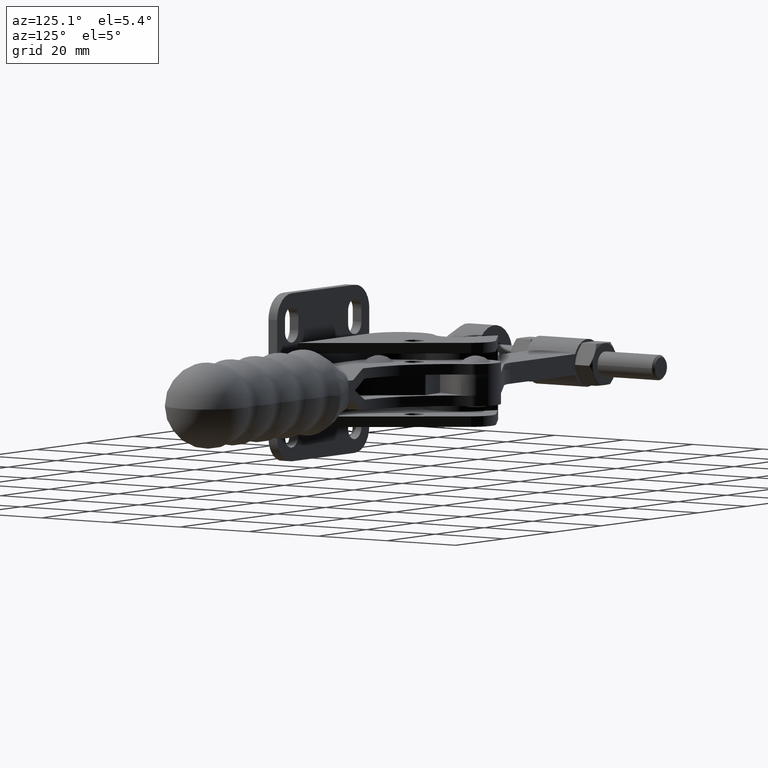
[diagram: clean part render]
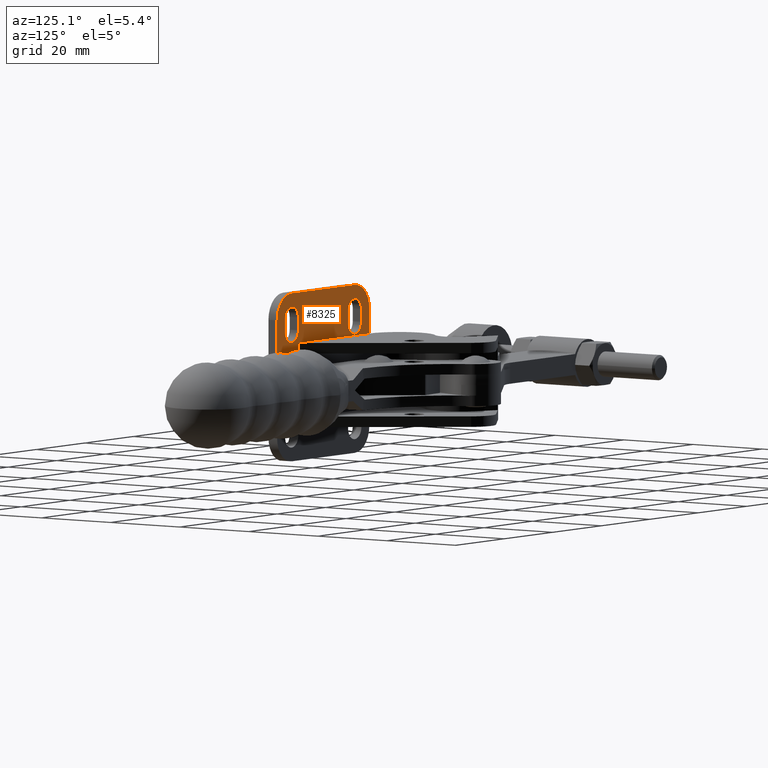
[diagram: same view with one face highlighted and labeled with its STEP entity id]
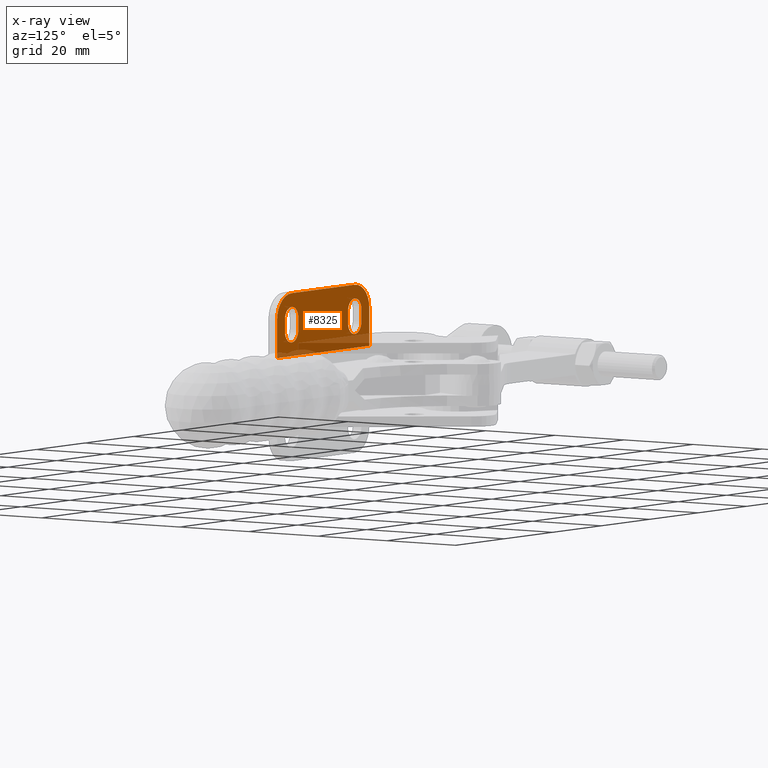
[diagram: x-ray of the same camera — body ghosted, the highlighted face saturated]
A machine part, auxiliary view. The second image highlights one B-rep face of the part: STEP entity #8325.
The next image is the same camera in x-ray: the body ghosted, the highlighted face saturated — about 20% of this face is hidden behind the body in this view.
In plain terms, the highlighted planar face has unit normal (0, -1, 0).
Its self-contained STEP definition (entity closure, byte-faithful):
#31 = AXIS2_PLACEMENT_3D ( 'NONE', #8297, #2074, #9308 ) ;
#71 = CARTESIAN_POINT ( 'NONE',  ( 31.99999999999997200, 2.500000000000002200, 13.99999999999995600 ) ) ;
#99 = EDGE_CURVE ( 'NONE', #518, #8518, #2357, .T. ) ;
#142 = EDGE_CURVE ( 'NONE', #5850, #9049, #3531, .T. ) ;
#286 = DIRECTION ( 'NONE',  ( -1.000000000000000000, -0.0000000000000000000, -0.0000000000000000000 ) ) ;
#350 = DIRECTION ( 'NONE',  ( 0.0000000000000000000, 0.0000000000000000000, -1.000000000000000000 ) ) ;
#362 = ORIENTED_EDGE ( 'NONE', *, *, #2349, .T. ) ;
#377 = EDGE_CURVE ( 'NONE', #10472, #9955, #9428, .T. ) ;
#516 = CARTESIAN_POINT ( 'NONE',  ( 31.99999999999991800, 2.500000000000002200, 10.99999999999998000 ) ) ;
#518 = VERTEX_POINT ( 'NONE', #697 ) ;
#696 = ORIENTED_EDGE ( 'NONE', *, *, #3970, .T. ) ;
#697 = CARTESIAN_POINT ( 'NONE',  ( 3.249999999999975100, 2.500000000000002200, 13.99999999999995600 ) ) ;
#700 = AXIS2_PLACEMENT_3D ( 'NONE', #9621, #4707, #10433 ) ;
#746 = LINE ( 'NONE', #3680, #7254 ) ;
#869 = CARTESIAN_POINT ( 'NONE',  ( 8.749999999999980500, 2.500000000000002200, 10.99999999999995200 ) ) ;
#905 = PLANE ( 'NONE',  #8285 ) ;
#1148 = ORIENTED_EDGE ( 'NONE', *, *, #142, .F. ) ;
#1368 = ORIENTED_EDGE ( 'NONE', *, *, #3144, .F. ) ;
#1383 = ORIENTED_EDGE ( 'NONE', *, *, #4929, .T. ) ;
#1417 = LINE ( 'NONE', #7711, #3445 ) ;
#1425 = VERTEX_POINT ( 'NONE', #10109 ) ;
#1567 = CARTESIAN_POINT ( 'NONE',  ( 29.25000000000000000, 2.500000000000002200, 13.99999999999995600 ) ) ;
#1632 = VECTOR ( 'NONE', #7252, 1000.000000000000000 ) ;
#1646 = CARTESIAN_POINT ( 'NONE',  ( 34.75000000000002800, 2.500000000000002200, 13.99999999999995600 ) ) ;
#1652 = CARTESIAN_POINT ( 'NONE',  ( 3.249999999999975100, 2.500000000000002200, 13.99999999999995600 ) ) ;
#1706 = DIRECTION ( 'NONE',  ( 0.0000000000000000000, -1.000000000000000000, 0.0000000000000000000 ) ) ;
#1883 = VERTEX_POINT ( 'NONE', #2693 ) ;
#2050 = FACE_BOUND ( 'NONE', #2720, .T. ) ;
#2074 = DIRECTION ( 'NONE',  ( 0.0000000000000000000, -1.000000000000000000, 0.0000000000000000000 ) ) ;
#2312 = CARTESIAN_POINT ( 'NONE',  ( 34.75000000000002800, 2.500000000000002200, 13.99999999999995600 ) ) ;
#2349 = EDGE_CURVE ( 'NONE', #1425, #7539, #4344, .T. ) ;
#2357 = LINE ( 'NONE', #1652, #8906 ) ;
#2559 = FACE_OUTER_BOUND ( 'NONE', #10151, .T. ) ;
#2619 = CARTESIAN_POINT ( 'NONE',  ( 34.75000000000002800, 2.500000000000002200, 10.99999999999995200 ) ) ;
#2630 = CIRCLE ( 'NONE', #3387, 2.750000000000016400 ) ;
#2654 = CARTESIAN_POINT ( 'NONE',  ( 5.999999999999977800, 2.500000000000002200, 19.99999999999994700 ) ) ;
#2693 = CARTESIAN_POINT ( 'NONE',  ( 37.99999999999995000, 2.500000000000002200, 5.000000000000000900 ) ) ;
#2720 = EDGE_LOOP ( 'NONE', ( #8012, #1383, #3062, #3353, #696 ) ) ;
#2830 = LINE ( 'NONE', #3986, #9113 ) ;
#2897 = CARTESIAN_POINT ( 'NONE',  ( 5.999999999999950300, 2.500000000000002200, 10.99999999999995200 ) ) ;
#2908 = VERTEX_POINT ( 'NONE', #9663 ) ;
#2968 = VECTOR ( 'NONE', #7288, 1000.000000000000000 ) ;
#2988 = CIRCLE ( 'NONE', #9182, 2.750000000000016400 ) ;
#3062 = ORIENTED_EDGE ( 'NONE', *, *, #99, .T. ) ;
#3109 = CARTESIAN_POINT ( 'NONE',  ( 31.99999999999997200, 2.500000000000002200, 19.99999999999995400 ) ) ;
#3113 = ORIENTED_EDGE ( 'NONE', *, *, #8248, .F. ) ;
#3144 = EDGE_CURVE ( 'NONE', #9955, #5850, #1417, .T. ) ;
#3353 = ORIENTED_EDGE ( 'NONE', *, *, #6550, .T. ) ;
#3369 = EDGE_CURVE ( 'NONE', #8097, #7458, #8563, .T. ) ;
#3387 = AXIS2_PLACEMENT_3D ( 'NONE', #8635, #3721, #9473 ) ;
#3402 = AXIS2_PLACEMENT_3D ( 'NONE', #4268, #10470, #8641 ) ;
#3445 = VECTOR ( 'NONE', #286, 1000.000000000000000 ) ;
#3531 = CIRCLE ( 'NONE', #5864, 5.999999999999984900 ) ;
#3680 = CARTESIAN_POINT ( 'NONE',  ( 0.0000000000000000000, 2.500000000000002200, 13.99999999999995600 ) ) ;
#3694 = DIRECTION ( 'NONE',  ( 0.0000000000000000000, 0.0000000000000000000, -1.000000000000000000 ) ) ;
#3721 = DIRECTION ( 'NONE',  ( 0.0000000000000000000, -1.000000000000000000, 0.0000000000000000000 ) ) ;
#3761 = LINE ( 'NONE', #2312, #1632 ) ;
#3970 = EDGE_CURVE ( 'NONE', #6368, #8097, #9227, .T. ) ;
#3986 = CARTESIAN_POINT ( 'NONE',  ( -2.775557561562891400E-014, 2.500000000000002200, 4.999999999999947600 ) ) ;
#4106 = VECTOR ( 'NONE', #5201, 1000.000000000000000 ) ;
#4196 = CARTESIAN_POINT ( 'NONE',  ( 5.999999999999950300, 2.500000000000002200, 8.249999999999936100 ) ) ;
#4268 = CARTESIAN_POINT ( 'NONE',  ( 5.999999999999950300, 2.500000000000002200, 10.99999999999995200 ) ) ;
#4339 = CARTESIAN_POINT ( 'NONE',  ( 0.0000000000000000000, 2.500000000000002200, 13.99999999999995700 ) ) ;
#4344 = CIRCLE ( 'NONE', #7455, 2.750000000000030200 ) ;
#4478 = FACE_BOUND ( 'NONE', #10277, .T. ) ;
#4512 = DIRECTION ( 'NONE',  ( -3.083952846180987300E-015, 0.0000000000000000000, -1.000000000000000000 ) ) ;
#4691 = DIRECTION ( 'NONE',  ( 0.0000000000000000000, -1.000000000000000000, 0.0000000000000000000 ) ) ;
#4707 = DIRECTION ( 'NONE',  ( 0.0000000000000000000, -1.000000000000000000, 0.0000000000000000000 ) ) ;
#4841 = ORIENTED_EDGE ( 'NONE', *, *, #7345, .T. ) ;
#4909 = LINE ( 'NONE', #1567, #2968 ) ;
#4929 = EDGE_CURVE ( 'NONE', #7458, #518, #9198, .T. ) ;
#4952 = ORIENTED_EDGE ( 'NONE', *, *, #5392, .T. ) ;
#4992 = VERTEX_POINT ( 'NONE', #1646 ) ;
#5191 = ORIENTED_EDGE ( 'NONE', *, *, #7255, .T. ) ;
#5201 = DIRECTION ( 'NONE',  ( 3.083952846181006300E-015, -0.0000000000000000000, 1.000000000000000000 ) ) ;
#5274 = CARTESIAN_POINT ( 'NONE',  ( 8.749999999999952000, 2.500000000000002200, 13.99999999999995600 ) ) ;
#5385 = EDGE_CURVE ( 'NONE', #9049, #7672, #746, .T. ) ;
#5392 = EDGE_CURVE ( 'NONE', #4992, #2908, #2630, .T. ) ;
#5526 = ORIENTED_EDGE ( 'NONE', *, *, #5604, .T. ) ;
#5604 = EDGE_CURVE ( 'NONE', #7539, #4992, #3761, .T. ) ;
#5850 = VERTEX_POINT ( 'NONE', #2654 ) ;
#5864 = AXIS2_PLACEMENT_3D ( 'NONE', #7327, #7289, #9171 ) ;
#5989 = CARTESIAN_POINT ( 'NONE',  ( 3.249999999999975100, 2.500000000000002200, 10.99999999999995200 ) ) ;
#6200 = AXIS2_PLACEMENT_3D ( 'NONE', #8599, #9421, #7015 ) ;
#6296 = CARTESIAN_POINT ( 'NONE',  ( 37.99999999999997900, 2.500000000000002200, 13.99999999999995600 ) ) ;
#6313 = LINE ( 'NONE', #6822, #4106 ) ;
#6368 = VERTEX_POINT ( 'NONE', #4196 ) ;
#6389 = VECTOR ( 'NONE', #8826, 1000.000000000000000 ) ;
#6522 = DIRECTION ( 'NONE',  ( 0.0000000000000000000, 0.0000000000000000000, -1.000000000000000000 ) ) ;
#6550 = EDGE_CURVE ( 'NONE', #8518, #6368, #2988, .T. ) ;
#6822 = CARTESIAN_POINT ( 'NONE',  ( 37.99999999999997900, 2.500000000000002200, 13.99999999999995600 ) ) ;
#7015 = DIRECTION ( 'NONE',  ( 0.0000000000000000000, 0.0000000000000000000, -1.000000000000000000 ) ) ;
#7018 = EDGE_CURVE ( 'NONE', #1883, #10472, #6313, .T. ) ;
#7105 = ORIENTED_EDGE ( 'NONE', *, *, #5385, .F. ) ;
#7252 = DIRECTION ( 'NONE',  ( -0.0000000000000000000, -0.0000000000000000000, 1.000000000000000000 ) ) ;
#7254 = VECTOR ( 'NONE', #4512, 1000.000000000000000 ) ;
#7255 = EDGE_CURVE ( 'NONE', #9897, #1425, #7852, .T. ) ;
#7288 = DIRECTION ( 'NONE',  ( -9.251858538542962800E-015, 0.0000000000000000000, -1.000000000000000000 ) ) ;
#7289 = DIRECTION ( 'NONE',  ( 0.0000000000000000000, -1.000000000000000000, 0.0000000000000000000 ) ) ;
#7327 = CARTESIAN_POINT ( 'NONE',  ( 5.999999999999977800, 2.500000000000002200, 13.99999999999995600 ) ) ;
#7345 = EDGE_CURVE ( 'NONE', #2908, #9897, #4909, .T. ) ;
#7424 = DIRECTION ( 'NONE',  ( 0.0000000000000000000, -0.0000000000000000000, -1.000000000000000000 ) ) ;
#7455 = AXIS2_PLACEMENT_3D ( 'NONE', #516, #4691, #350 ) ;
#7458 = VERTEX_POINT ( 'NONE', #8244 ) ;
#7539 = VERTEX_POINT ( 'NONE', #2619 ) ;
#7672 = VERTEX_POINT ( 'NONE', #9395 ) ;
#7711 = CARTESIAN_POINT ( 'NONE',  ( 5.999999999999977800, 2.500000000000002200, 19.99999999999994700 ) ) ;
#7852 = CIRCLE ( 'NONE', #700, 2.750000000000030200 ) ;
#8012 = ORIENTED_EDGE ( 'NONE', *, *, #3369, .T. ) ;
#8097 = VERTEX_POINT ( 'NONE', #869 ) ;
#8244 = CARTESIAN_POINT ( 'NONE',  ( 8.749999999999952000, 2.500000000000002200, 13.99999999999995600 ) ) ;
#8248 = EDGE_CURVE ( 'NONE', #7672, #1883, #2830, .T. ) ;
#8285 = AXIS2_PLACEMENT_3D ( 'NONE', #71, #1706, #7424 ) ;
#8297 = CARTESIAN_POINT ( 'NONE',  ( 5.999999999999977800, 2.500000000000002200, 13.99999999999995600 ) ) ;
#8325 = ADVANCED_FACE ( 'NONE', ( #2050, #4478, #2559 ), #905, .F. ) ;
#8518 = VERTEX_POINT ( 'NONE', #5989 ) ;
#8563 = LINE ( 'NONE', #5274, #6389 ) ;
#8599 = CARTESIAN_POINT ( 'NONE',  ( 31.99999999999997200, 2.500000000000002200, 13.99999999999995600 ) ) ;
#8600 = DIRECTION ( 'NONE',  ( 0.0000000000000000000, -1.000000000000000000, 0.0000000000000000000 ) ) ;
#8635 = CARTESIAN_POINT ( 'NONE',  ( 31.99999999999997200, 2.500000000000002200, 13.99999999999995600 ) ) ;
#8641 = DIRECTION ( 'NONE',  ( 0.0000000000000000000, 0.0000000000000000000, -1.000000000000000000 ) ) ;
#8826 = DIRECTION ( 'NONE',  ( -1.850371707708592600E-014, -0.0000000000000000000, 1.000000000000000000 ) ) ;
#8835 = ORIENTED_EDGE ( 'NONE', *, *, #7018, .F. ) ;
#8906 = VECTOR ( 'NONE', #6522, 1000.000000000000000 ) ;
#9026 = ORIENTED_EDGE ( 'NONE', *, *, #377, .F. ) ;
#9049 = VERTEX_POINT ( 'NONE', #4339 ) ;
#9113 = VECTOR ( 'NONE', #9750, 1000.000000000000000 ) ;
#9171 = DIRECTION ( 'NONE',  ( 0.0000000000000000000, 0.0000000000000000000, -1.000000000000000000 ) ) ;
#9182 = AXIS2_PLACEMENT_3D ( 'NONE', #2897, #8600, #3694 ) ;
#9198 = CIRCLE ( 'NONE', #31, 2.749999999999988500 ) ;
#9227 = CIRCLE ( 'NONE', #3402, 2.750000000000016400 ) ;
#9308 = DIRECTION ( 'NONE',  ( 0.0000000000000000000, 0.0000000000000000000, -1.000000000000000000 ) ) ;
#9395 = CARTESIAN_POINT ( 'NONE',  ( 0.0000000000000000000, 2.500000000000002200, 5.000000000000000900 ) ) ;
#9421 = DIRECTION ( 'NONE',  ( 0.0000000000000000000, -1.000000000000000000, 0.0000000000000000000 ) ) ;
#9428 = CIRCLE ( 'NONE', #6200, 5.999999999999998200 ) ;
#9473 = DIRECTION ( 'NONE',  ( 0.0000000000000000000, 0.0000000000000000000, -1.000000000000000000 ) ) ;
#9614 = CARTESIAN_POINT ( 'NONE',  ( 29.24999999999997200, 2.500000000000002200, 10.99999999999995400 ) ) ;
#9621 = CARTESIAN_POINT ( 'NONE',  ( 31.99999999999991800, 2.500000000000002200, 10.99999999999998000 ) ) ;
#9663 = CARTESIAN_POINT ( 'NONE',  ( 29.25000000000000000, 2.500000000000002200, 13.99999999999995600 ) ) ;
#9750 = DIRECTION ( 'NONE',  ( 1.000000000000000000, 0.0000000000000000000, 1.403756497007548600E-015 ) ) ;
#9897 = VERTEX_POINT ( 'NONE', #9614 ) ;
#9955 = VERTEX_POINT ( 'NONE', #3109 ) ;
#10109 = CARTESIAN_POINT ( 'NONE',  ( 31.99999999999991800, 2.500000000000002200, 8.249999999999950300 ) ) ;
#10151 = EDGE_LOOP ( 'NONE', ( #7105, #1148, #1368, #9026, #8835, #3113 ) ) ;
#10277 = EDGE_LOOP ( 'NONE', ( #5526, #4952, #4841, #5191, #362 ) ) ;
#10433 = DIRECTION ( 'NONE',  ( 0.0000000000000000000, 0.0000000000000000000, -1.000000000000000000 ) ) ;
#10470 = DIRECTION ( 'NONE',  ( 0.0000000000000000000, -1.000000000000000000, 0.0000000000000000000 ) ) ;
#10472 = VERTEX_POINT ( 'NONE', #6296 ) ;